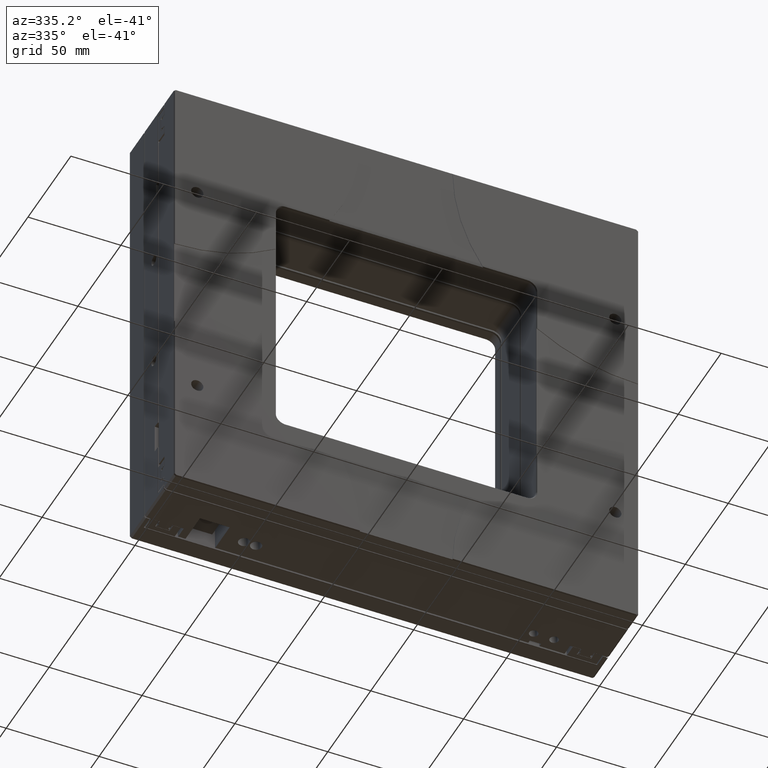
[diagram: clean part render]
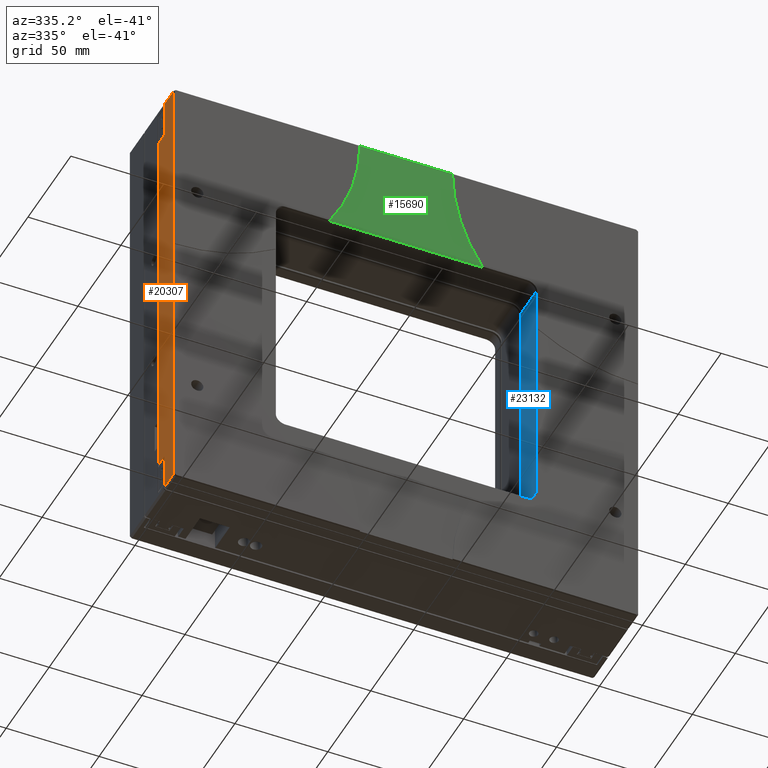
[diagram: same view with three faces highlighted in distinct colors, each labeled with its STEP entity id]
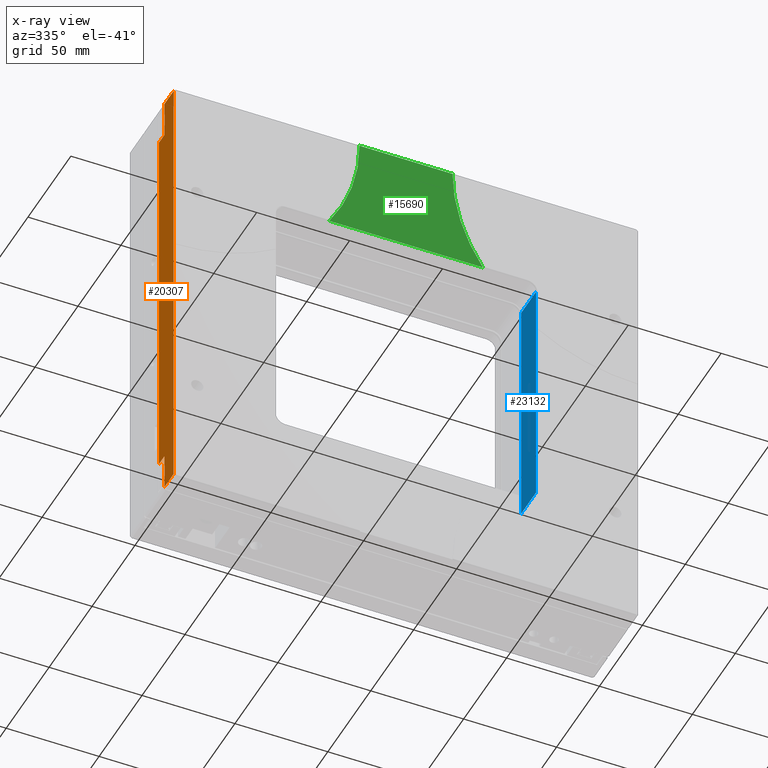
[diagram: x-ray of the same camera — body ghosted, the three highlighted faces saturated]
A machine part, auxiliary view with three faces highlighted in distinct colors.
The next image is the same camera in x-ray (body ghosted, the three faces saturated) — at least one of them is partly hidden behind the body in this view.
Their STEP definitions:

[orange] entity #20307 — the highlighted planar face has unit normal (1, 0, 0).
#90 = DIRECTION ( 'NONE',  ( 0.0000000000000000000, 1.000000000000000000, 1.224646799147353200E-016 ) ) ;
#200 = DIRECTION ( 'NONE',  ( 0.0000000000000000000, 1.000000000000000000, 1.224646799147353200E-016 ) ) ;
#462 = ORIENTED_EDGE ( 'NONE', *, *, #21041, .F. ) ;
#639 = EDGE_CURVE ( 'NONE', #18490, #16250, #650, .T. ) ;
#650 = LINE ( 'NONE', #3923, #19654 ) ;
#808 = LINE ( 'NONE', #3346, #15196 ) ;
#1118 = EDGE_CURVE ( 'NONE', #18435, #18663, #11824, .T. ) ;
#1365 = VERTEX_POINT ( 'NONE', #4595 ) ;
#1475 = DIRECTION ( 'NONE',  ( 0.0000000000000000000, -1.000000000000000000, -1.224646799147353200E-016 ) ) ;
#1873 = VECTOR ( 'NONE', #8733, 1000.000000000000000 ) ;
#2035 = ORIENTED_EDGE ( 'NONE', *, *, #22184, .T. ) ;
#2406 = CARTESIAN_POINT ( 'NONE',  ( -302.0477721377214400, 11.50000000000001400, 20.99999999999997900 ) ) ;
#2415 = CARTESIAN_POINT ( 'NONE',  ( -302.0477721377213800, 11.30000000000003600, 20.99999999999997900 ) ) ;
#2848 = EDGE_CURVE ( 'NONE', #23545, #8195, #15317, .T. ) ;
#2912 = LINE ( 'NONE', #9056, #13795 ) ;
#3105 = ORIENTED_EDGE ( 'NONE', *, *, #2848, .T. ) ;
#3346 = CARTESIAN_POINT ( 'NONE',  ( -302.0477721377213800, 0.4999999999999311700, 248.9999999999999400 ) ) ;
#3780 = ORIENTED_EDGE ( 'NONE', *, *, #18963, .T. ) ;
#3923 = CARTESIAN_POINT ( 'NONE',  ( -302.0477721377213800, 10.99999999999998800, 234.9999999999999400 ) ) ;
#4039 = EDGE_CURVE ( 'NONE', #21370, #14412, #21617, .T. ) ;
#4151 = VECTOR ( 'NONE', #18730, 1000.000000000000000 ) ;
#4171 = VECTOR ( 'NONE', #22425, 1000.000000000000000 ) ;
#4322 = CARTESIAN_POINT ( 'NONE',  ( -302.0477721377214400, 11.30000000000003800, 14.99999999999997200 ) ) ;
#4595 = CARTESIAN_POINT ( 'NONE',  ( -302.0477721377213800, 11.30000000000004000, 1.000000000000014700 ) ) ;
#4607 = VECTOR ( 'NONE', #15012, 1000.000000000000000 ) ;
#4700 = DIRECTION ( 'NONE',  ( 0.0000000000000000000, 1.224646799147353200E-016, -1.000000000000000000 ) ) ;
#4997 = CARTESIAN_POINT ( 'NONE',  ( -302.0477721377213800, 11.30000000000001100, 228.9999999999999400 ) ) ;
#5124 = CARTESIAN_POINT ( 'NONE',  ( -302.0477721377213800, 11.30000000000000800, 249.9999999999999400 ) ) ;
#5291 = DIRECTION ( 'NONE',  ( 0.0000000000000000000, 1.000000000000000000, 1.224646799147353200E-016 ) ) ;
#5430 = LINE ( 'NONE', #12090, #22667 ) ;
#5447 = DIRECTION ( 'NONE',  ( 0.0000000000000000000, 1.224646799147353200E-016, -1.000000000000000000 ) ) ;
#5476 = LINE ( 'NONE', #9636, #4607 ) ;
#5909 = ORIENTED_EDGE ( 'NONE', *, *, #22076, .T. ) ;
#5965 = ORIENTED_EDGE ( 'NONE', *, *, #19136, .F. ) ;
#6114 = VERTEX_POINT ( 'NONE', #2415 ) ;
#6314 = VERTEX_POINT ( 'NONE', #14349 ) ;
#6768 = LINE ( 'NONE', #17152, #19106 ) ;
#7126 = CARTESIAN_POINT ( 'NONE',  ( -302.0477721377213800, 17.99999999999998600, 248.9999999999999400 ) ) ;
#7196 = CARTESIAN_POINT ( 'NONE',  ( -302.0477721377213800, 0.4999999999999311700, 248.9999999999999400 ) ) ;
#7339 = DIRECTION ( 'NONE',  ( -0.0000000000000000000, -1.224646799147353200E-016, 1.000000000000000000 ) ) ;
#7386 = ORIENTED_EDGE ( 'NONE', *, *, #1118, .F. ) ;
#7846 = LINE ( 'NONE', #5124, #19357 ) ;
#8104 = EDGE_CURVE ( 'NONE', #8195, #1365, #6768, .T. ) ;
#8195 = VERTEX_POINT ( 'NONE', #11748 ) ;
#8486 = LINE ( 'NONE', #18506, #13927 ) ;
#8641 = DIRECTION ( 'NONE',  ( 0.0000000000000000000, 1.224646799147353200E-016, -1.000000000000000000 ) ) ;
#8725 = CARTESIAN_POINT ( 'NONE',  ( -302.0477721377214400, 11.00000000000001400, 14.99999999999997200 ) ) ;
#8733 = DIRECTION ( 'NONE',  ( 0.0000000000000000000, -1.224646799147353200E-016, 1.000000000000000000 ) ) ;
#8973 = VECTOR ( 'NONE', #200, 1000.000000000000000 ) ;
#9056 = CARTESIAN_POINT ( 'NONE',  ( -302.0477721377213800, 18.00000000000001400, 1.000000000000014700 ) ) ;
#9635 = CARTESIAN_POINT ( 'NONE',  ( -302.0477721377214400, 17.80000000000003300, 20.99999999999997900 ) ) ;
#9636 = CARTESIAN_POINT ( 'NONE',  ( -302.0477721377213800, 10.99999999999998800, 241.9999999999999400 ) ) ;
#10435 = DIRECTION ( 'NONE',  ( 0.0000000000000000000, 1.000000000000000000, 1.224646799147353200E-016 ) ) ;
#10522 = CARTESIAN_POINT ( 'NONE',  ( -302.0477721377213800, 17.80000000000000800, 249.9999999999999400 ) ) ;
#10554 = CARTESIAN_POINT ( 'NONE',  ( -302.0477721377213800, 11.30000000000000800, 249.9999999999999400 ) ) ;
#10673 = EDGE_LOOP ( 'NONE', ( #13564, #2035, #14638, #13847, #16257, #12788, #7386, #462, #3105, #19797, #13065, #3780, #13551, #5909, #5965, #21527 ) ) ;
#10722 = VECTOR ( 'NONE', #8641, 1000.000000000000000 ) ;
#11647 = LINE ( 'NONE', #21524, #1873 ) ;
#11748 = CARTESIAN_POINT ( 'NONE',  ( -302.0477721377214400, 11.30000000000003800, 7.999999999999965400 ) ) ;
#11824 = LINE ( 'NONE', #12576, #8973 ) ;
#12090 = CARTESIAN_POINT ( 'NONE',  ( -302.0477721377213800, 11.30000000000003800, 14.99999999999997200 ) ) ;
#12576 = CARTESIAN_POINT ( 'NONE',  ( -302.0477721377214400, 11.00000000000001400, 14.99999999999997200 ) ) ;
#12706 = LINE ( 'NONE', #10554, #10722 ) ;
#12788 = ORIENTED_EDGE ( 'NONE', *, *, #19694, .T. ) ;
#12936 = VECTOR ( 'NONE', #17835, 1000.000000000000000 ) ;
#13065 = ORIENTED_EDGE ( 'NONE', *, *, #23319, .T. ) ;
#13381 = FACE_OUTER_BOUND ( 'NONE', #10673, .T. ) ;
#13524 = LINE ( 'NONE', #7126, #15545 ) ;
#13551 = ORIENTED_EDGE ( 'NONE', *, *, #17021, .T. ) ;
#13564 = ORIENTED_EDGE ( 'NONE', *, *, #639, .T. ) ;
#13718 = EDGE_CURVE ( 'NONE', #20351, #21370, #21711, .T. ) ;
#13795 = VECTOR ( 'NONE', #14490, 1000.000000000000000 ) ;
#13847 = ORIENTED_EDGE ( 'NONE', *, *, #4039, .T. ) ;
#13927 = VECTOR ( 'NONE', #7339, 1000.000000000000000 ) ;
#14349 = CARTESIAN_POINT ( 'NONE',  ( -302.0477721377213800, 0.4999999999999615300, 1.000000000000014700 ) ) ;
#14412 = VERTEX_POINT ( 'NONE', #9635 ) ;
#14480 = EDGE_CURVE ( 'NONE', #6114, #14412, #22537, .T. ) ;
#14490 = DIRECTION ( 'NONE',  ( 0.0000000000000000000, -1.000000000000000000, -1.224646799147353200E-016 ) ) ;
#14638 = ORIENTED_EDGE ( 'NONE', *, *, #13718, .T. ) ;
#14985 = DIRECTION ( 'NONE',  ( 0.0000000000000000000, 1.224646799147353200E-016, -1.000000000000000000 ) ) ;
#15012 = DIRECTION ( 'NONE',  ( 0.0000000000000000000, 1.000000000000000000, 1.224646799147353200E-016 ) ) ;
#15196 = VECTOR ( 'NONE', #21805, 1000.000000000000000 ) ;
#15233 = CARTESIAN_POINT ( 'NONE',  ( -302.0477721377214400, 11.00000000000001400, 7.999999999999965400 ) ) ;
#15317 = LINE ( 'NONE', #15233, #4171 ) ;
#15321 = VERTEX_POINT ( 'NONE', #21596 ) ;
#15545 = VECTOR ( 'NONE', #5291, 1000.000000000000000 ) ;
#15943 = VECTOR ( 'NONE', #10435, 1000.000000000000000 ) ;
#16147 = CARTESIAN_POINT ( 'NONE',  ( -302.0477721377213800, 11.49999999999998900, 228.9999999999999400 ) ) ;
#16200 = DIRECTION ( 'NONE',  ( 1.000000000000000000, 0.0000000000000000000, 0.0000000000000000000 ) ) ;
#16250 = VERTEX_POINT ( 'NONE', #22752 ) ;
#16257 = ORIENTED_EDGE ( 'NONE', *, *, #14480, .F. ) ;
#17021 = EDGE_CURVE ( 'NONE', #21025, #15321, #13524, .T. ) ;
#17043 = VERTEX_POINT ( 'NONE', #19572 ) ;
#17152 = CARTESIAN_POINT ( 'NONE',  ( -302.0477721377213800, 11.30000000000004000, 1.000000000000014700 ) ) ;
#17229 = CARTESIAN_POINT ( 'NONE',  ( -302.0477721377214400, 11.00000000000001400, 7.999999999999965400 ) ) ;
#17835 = DIRECTION ( 'NONE',  ( 0.0000000000000000000, 1.224646799147353200E-016, -1.000000000000000000 ) ) ;
#18020 = CARTESIAN_POINT ( 'NONE',  ( -302.0477721377213800, 10.99999999999998800, 234.9999999999999400 ) ) ;
#18435 = VERTEX_POINT ( 'NONE', #8725 ) ;
#18490 = VERTEX_POINT ( 'NONE', #18020 ) ;
#18506 = CARTESIAN_POINT ( 'NONE',  ( -302.0477721377214400, 11.00000000000001400, 14.99999999999997200 ) ) ;
#18663 = VERTEX_POINT ( 'NONE', #4322 ) ;
#18730 = DIRECTION ( 'NONE',  ( 0.0000000000000000000, 1.000000000000000000, 1.224646799147353200E-016 ) ) ;
#18963 = EDGE_CURVE ( 'NONE', #6314, #21025, #808, .T. ) ;
#19106 = VECTOR ( 'NONE', #14985, 1000.000000000000000 ) ;
#19136 = EDGE_CURVE ( 'NONE', #17043, #22084, #5476, .T. ) ;
#19201 = CARTESIAN_POINT ( 'NONE',  ( -302.0477721377213800, 17.80000000000000400, 228.9999999999999400 ) ) ;
#19357 = VECTOR ( 'NONE', #5447, 1000.000000000000000 ) ;
#19572 = CARTESIAN_POINT ( 'NONE',  ( -302.0477721377213800, 10.99999999999998800, 241.9999999999999400 ) ) ;
#19654 = VECTOR ( 'NONE', #90, 1000.000000000000000 ) ;
#19660 = CARTESIAN_POINT ( 'NONE',  ( -302.0477721377213800, 11.30000000000001000, 241.9999999999999400 ) ) ;
#19694 = EDGE_CURVE ( 'NONE', #6114, #18663, #5430, .T. ) ;
#19797 = ORIENTED_EDGE ( 'NONE', *, *, #8104, .T. ) ;
#19816 = CARTESIAN_POINT ( 'NONE',  ( -302.0477721377213800, 17.99999999999998600, 249.9999999999999400 ) ) ;
#20307 = ADVANCED_FACE ( 'NONE', ( #13381 ), #23382, .F. ) ;
#20351 = VERTEX_POINT ( 'NONE', #4997 ) ;
#20404 = EDGE_CURVE ( 'NONE', #18490, #17043, #11647, .T. ) ;
#20741 = AXIS2_PLACEMENT_3D ( 'NONE', #19816, #16200, #1475 ) ;
#21025 = VERTEX_POINT ( 'NONE', #7196 ) ;
#21041 = EDGE_CURVE ( 'NONE', #23545, #18435, #8486, .T. ) ;
#21370 = VERTEX_POINT ( 'NONE', #19201 ) ;
#21524 = CARTESIAN_POINT ( 'NONE',  ( -302.0477721377213800, 10.99999999999998800, 234.9999999999999400 ) ) ;
#21527 = ORIENTED_EDGE ( 'NONE', *, *, #20404, .F. ) ;
#21596 = CARTESIAN_POINT ( 'NONE',  ( -302.0477721377213800, 11.30000000000000800, 248.9999999999999400 ) ) ;
#21617 = LINE ( 'NONE', #10522, #12936 ) ;
#21711 = LINE ( 'NONE', #16147, #15943 ) ;
#21805 = DIRECTION ( 'NONE',  ( 0.0000000000000000000, -1.224646799147353200E-016, 1.000000000000000000 ) ) ;
#22076 = EDGE_CURVE ( 'NONE', #15321, #22084, #12706, .T. ) ;
#22084 = VERTEX_POINT ( 'NONE', #19660 ) ;
#22184 = EDGE_CURVE ( 'NONE', #16250, #20351, #7846, .T. ) ;
#22425 = DIRECTION ( 'NONE',  ( 0.0000000000000000000, 1.000000000000000000, 1.224646799147353200E-016 ) ) ;
#22537 = LINE ( 'NONE', #2406, #4151 ) ;
#22667 = VECTOR ( 'NONE', #4700, 1000.000000000000000 ) ;
#22752 = CARTESIAN_POINT ( 'NONE',  ( -302.0477721377213800, 11.30000000000001000, 234.9999999999999400 ) ) ;
#23319 = EDGE_CURVE ( 'NONE', #1365, #6314, #2912, .T. ) ;
#23382 = PLANE ( 'NONE',  #20741 ) ;
#23545 = VERTEX_POINT ( 'NONE', #17229 ) ;

[blue] entity #23132 — the highlighted planar face has unit normal (1, 0, 0).
#1159 = ORIENTED_EDGE ( 'NONE', *, *, #3179, .T. ) ;
#1409 = CARTESIAN_POINT ( 'NONE',  ( -107.0477721377214200, -7.198821011953847100E-015, 194.9999999999999400 ) ) ;
#1782 = VECTOR ( 'NONE', #16525, 1000.000000000000000 ) ;
#2257 = CARTESIAN_POINT ( 'NONE',  ( -107.0477721377214200, 17.79999999999995800, 189.9999999999999400 ) ) ;
#2382 = DIRECTION ( 'NONE',  ( 0.0000000000000000000, 1.000000000000000000, 1.224646799147353200E-016 ) ) ;
#2700 = DIRECTION ( 'NONE',  ( -0.0000000000000000000, -1.000000000000000000, -1.224646799147353200E-016 ) ) ;
#3144 = DIRECTION ( 'NONE',  ( 1.000000000000000000, 0.0000000000000000000, 0.0000000000000000000 ) ) ;
#3179 = EDGE_CURVE ( 'NONE', #11372, #8266, #4155, .T. ) ;
#3620 = VECTOR ( 'NONE', #11984, 1000.000000000000000 ) ;
#4155 = LINE ( 'NONE', #22009, #1782 ) ;
#4664 = CARTESIAN_POINT ( 'NONE',  ( -107.0477721377214200, 9.333910776535423200E-015, 59.99999999999995700 ) ) ;
#5038 = VECTOR ( 'NONE', #2382, 1000.000000000000000 ) ;
#6834 = PLANE ( 'NONE',  #7541 ) ;
#6841 = CARTESIAN_POINT ( 'NONE',  ( -107.0477721377214200, 17.79999999999997200, 59.99999999999995700 ) ) ;
#6916 = DIRECTION ( 'NONE',  ( 0.0000000000000000000, -1.000000000000000000, -1.224646799147353200E-016 ) ) ;
#7541 = AXIS2_PLACEMENT_3D ( 'NONE', #1409, #3144, #6916 ) ;
#7761 = VERTEX_POINT ( 'NONE', #6841 ) ;
#8266 = VERTEX_POINT ( 'NONE', #10393 ) ;
#10393 = CARTESIAN_POINT ( 'NONE',  ( -107.0477721377214200, 0.4999999999999939500, 189.9999999999999400 ) ) ;
#11075 = ORIENTED_EDGE ( 'NONE', *, *, #15103, .T. ) ;
#11372 = VERTEX_POINT ( 'NONE', #23187 ) ;
#11984 = DIRECTION ( 'NONE',  ( 0.0000000000000000000, 1.224646799147353200E-016, -1.000000000000000000 ) ) ;
#13992 = EDGE_CURVE ( 'NONE', #8266, #15442, #19389, .T. ) ;
#14178 = EDGE_LOOP ( 'NONE', ( #14839, #11075, #22549, #1159 ) ) ;
#14397 = VECTOR ( 'NONE', #2700, 1000.000000000000000 ) ;
#14839 = ORIENTED_EDGE ( 'NONE', *, *, #13992, .T. ) ;
#15071 = LINE ( 'NONE', #18925, #3620 ) ;
#15103 = EDGE_CURVE ( 'NONE', #15442, #7761, #15071, .T. ) ;
#15442 = VERTEX_POINT ( 'NONE', #2257 ) ;
#16525 = DIRECTION ( 'NONE',  ( 0.0000000000000000000, -1.224646799147353200E-016, 1.000000000000000000 ) ) ;
#16772 = EDGE_CURVE ( 'NONE', #7761, #11372, #19313, .T. ) ;
#18925 = CARTESIAN_POINT ( 'NONE',  ( -107.0477721377214200, 17.79999999999995800, 194.9999999999999400 ) ) ;
#19313 = LINE ( 'NONE', #4664, #14397 ) ;
#19389 = LINE ( 'NONE', #22585, #5038 ) ;
#21916 = FACE_OUTER_BOUND ( 'NONE', #14178, .T. ) ;
#22009 = CARTESIAN_POINT ( 'NONE',  ( -107.0477721377214200, 0.4999999999999939500, 189.9999999999999400 ) ) ;
#22549 = ORIENTED_EDGE ( 'NONE', *, *, #16772, .T. ) ;
#22585 = CARTESIAN_POINT ( 'NONE',  ( -107.0477721377214200, 17.99999999999999300, 189.9999999999999400 ) ) ;
#23132 = ADVANCED_FACE ( 'NONE', ( #21916 ), #6834, .F. ) ;
#23187 = CARTESIAN_POINT ( 'NONE',  ( -107.0477721377214200, 0.5000000000000097700, 59.99999999999995700 ) ) ;

[green] entity #15690 — the highlighted planar face has unit normal (0, -1, -0).
#908 = VERTEX_POINT ( 'NONE', #2761 ) ;
#1140 = ORIENTED_EDGE ( 'NONE', *, *, #13613, .T. ) ;
#1788 = VERTEX_POINT ( 'NONE', #9601 ) ;
#2352 = CIRCLE ( 'NONE', #20243, 100.0000000000000000 ) ;
#2500 = PLANE ( 'NONE',  #4836 ) ;
#2761 = CARTESIAN_POINT ( 'NONE',  ( -202.0479721379214200, 0.2999999999999860600, 249.8000000000000100 ) ) ;
#2811 = EDGE_CURVE ( 'NONE', #908, #17223, #7312, .T. ) ;
#2823 = DIRECTION ( 'NONE',  ( 1.000000000000000000, 0.0000000000000000000, 0.0000000000000000000 ) ) ;
#3401 = ORIENTED_EDGE ( 'NONE', *, *, #17877, .T. ) ;
#3572 = EDGE_CURVE ( 'NONE', #1788, #10038, #2352, .T. ) ;
#4046 = CARTESIAN_POINT ( 'NONE',  ( -302.0477721377213800, 0.2999999999999860600, 249.9999999999999400 ) ) ;
#4836 = AXIS2_PLACEMENT_3D ( 'NONE', #8124, #6407, #22858 ) ;
#4926 = VECTOR ( 'NONE', #6695, 1000.000000000000000 ) ;
#6059 = DIRECTION ( 'NONE',  ( 0.0000000000000000000, 1.000000000000000000, 1.224646799147353200E-016 ) ) ;
#6107 = ORIENTED_EDGE ( 'NONE', *, *, #2811, .T. ) ;
#6407 = DIRECTION ( 'NONE',  ( 0.0000000000000000000, -1.000000000000000000, -1.224646799147353200E-016 ) ) ;
#6695 = DIRECTION ( 'NONE',  ( -1.000000000000000000, 0.0000000000000000000, 0.0000000000000000000 ) ) ;
#7204 = DIRECTION ( 'NONE',  ( -1.000000000000000000, 0.0000000000000000000, 0.0000000000000000000 ) ) ;
#7312 = CIRCLE ( 'NONE', #12942, 99.99999999999997200 ) ;
#7969 = CARTESIAN_POINT ( 'NONE',  ( -218.3999389320728100, 0.2999999999999927200, 195.1999999999999900 ) ) ;
#8124 = CARTESIAN_POINT ( 'NONE',  ( -52.04777213772141000, 0.2999999999999860600, 249.9999999999999400 ) ) ;
#8146 = EDGE_LOOP ( 'NONE', ( #1140, #21275, #3401, #6107 ) ) ;
#8508 = CARTESIAN_POINT ( 'NONE',  ( -52.04777213772141000, 0.2999999999999927200, 195.1999999999999900 ) ) ;
#9601 = CARTESIAN_POINT ( 'NONE',  ( -135.6956053433699800, 0.2999999999999927200, 195.1999999999999900 ) ) ;
#10038 = VERTEX_POINT ( 'NONE', #14617 ) ;
#11473 = LINE ( 'NONE', #17658, #4926 ) ;
#12942 = AXIS2_PLACEMENT_3D ( 'NONE', #4046, #6059, #18869 ) ;
#13613 = EDGE_CURVE ( 'NONE', #17223, #1788, #18253, .T. ) ;
#14617 = CARTESIAN_POINT ( 'NONE',  ( -152.0475721375214000, 0.2999999999999860600, 249.8000000000000100 ) ) ;
#15690 = ADVANCED_FACE ( 'NONE', ( #20816 ), #2500, .T. ) ;
#16421 = CARTESIAN_POINT ( 'NONE',  ( -52.04777213772141000, 0.2999999999999860600, 249.9999999999999400 ) ) ;
#17223 = VERTEX_POINT ( 'NONE', #7969 ) ;
#17658 = CARTESIAN_POINT ( 'NONE',  ( -52.04777213772141000, 0.2999999999999860600, 249.8000000000000100 ) ) ;
#17877 = EDGE_CURVE ( 'NONE', #10038, #908, #11473, .T. ) ;
#18253 = LINE ( 'NONE', #8508, #19691 ) ;
#18869 = DIRECTION ( 'NONE',  ( -1.000000000000000000, 0.0000000000000000000, 0.0000000000000000000 ) ) ;
#19691 = VECTOR ( 'NONE', #2823, 1000.000000000000000 ) ;
#20243 = AXIS2_PLACEMENT_3D ( 'NONE', #16421, #21673, #7204 ) ;
#20816 = FACE_OUTER_BOUND ( 'NONE', #8146, .T. ) ;
#21275 = ORIENTED_EDGE ( 'NONE', *, *, #3572, .T. ) ;
#21673 = DIRECTION ( 'NONE',  ( 0.0000000000000000000, 1.000000000000000000, 1.224646799147353200E-016 ) ) ;
#22858 = DIRECTION ( 'NONE',  ( -1.000000000000000000, 0.0000000000000000000, -0.0000000000000000000 ) ) ;